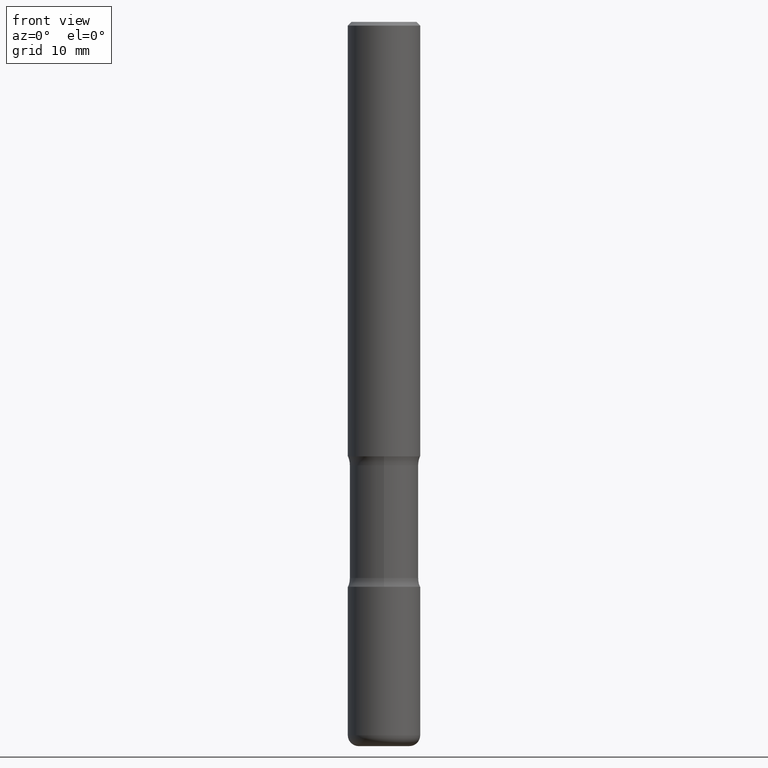
[diagram: clean part render]
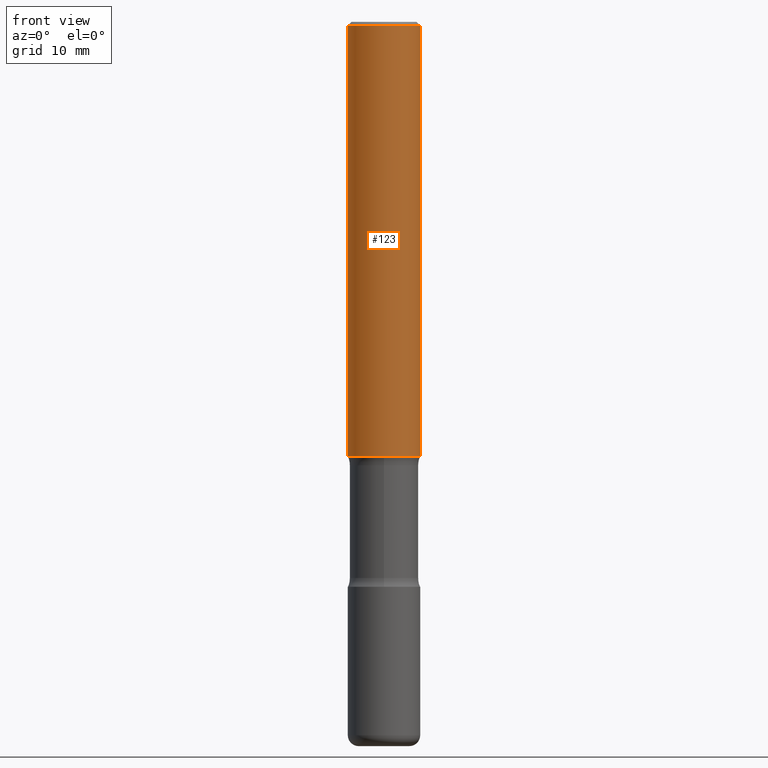
[diagram: same view with one face highlighted and labeled with its STEP entity id]
A machine part, front view. The second image highlights one B-rep face of the part: STEP entity #123.
In plain terms, the highlighted cylindrical surface (edge-blend (fillet) strip) has radius 5 mm, axis along (-0, 0, 1).
Its self-contained STEP definition (entity closure, byte-faithful):
#36 = CARTESIAN_POINT ( 'NONE',  ( 0.1968499999999999417, -1.420318657638188727E-15, -0.02000000000000006981 ) ) ;
#37 = CIRCLE ( 'NONE', #432, 0.1968499999999999417 ) ;
#40 = CARTESIAN_POINT ( 'NONE',  ( -0.1968499999999999417, 1.304766576325678113E-15, -0.02000000000000006981 ) ) ;
#45 = EDGE_CURVE ( 'NONE', #264, #304, #255, .T. ) ;
#56 = AXIS2_PLACEMENT_3D ( 'NONE', #398, #410, #316 ) ;
#61 = DIRECTION ( 'NONE',  ( 1.000000000000000000, -6.982962677686266711E-15, 4.876176775795935793E-29 ) ) ;
#83 = CARTESIAN_POINT ( 'NONE',  ( 0.1968500000000000527, -1.374596203102542003E-15, 9.598753983154302260E-30 ) ) ;
#95 = ORIENTED_EDGE ( 'NONE', *, *, #530, .F. ) ;
#97 = CARTESIAN_POINT ( 'NONE',  ( 0.000000000000000000, 0.000000000000000000, 0.000000000000000000 ) ) ;
#100 = FACE_OUTER_BOUND ( 'NONE', #128, .T. ) ;
#117 = CARTESIAN_POINT ( 'NONE',  ( -0.1968500000000001360, -2.760000047352310125E-15, -2.362200000000000077 ) ) ;
#123 = ADVANCED_FACE ( 'NONE', ( #100 ), #174, .T. ) ;
#126 = VECTOR ( 'NONE', #369, 39.37007874015748143 ) ;
#128 = EDGE_LOOP ( 'NONE', ( #268, #519, #385, #95 ) ) ;
#174 = CYLINDRICAL_SURFACE ( 'NONE', #270, 0.1968500000000000527 ) ;
#192 = VECTOR ( 'NONE', #252, 39.37007874015748143 ) ;
#252 = DIRECTION ( 'NONE',  ( -2.445468806185136877E-29, 3.491481338843145188E-15, 1.000000000000000000 ) ) ;
#255 = CIRCLE ( 'NONE', #56, 0.1968500000000001082 ) ;
#258 = CARTESIAN_POINT ( 'NONE',  ( 4.890937612370289799E-31, -6.982962677686315028E-17, -0.02000000000000006981 ) ) ;
#264 = VERTEX_POINT ( 'NONE', #117 ) ;
#268 = ORIENTED_EDGE ( 'NONE', *, *, #315, .F. ) ;
#270 = AXIS2_PLACEMENT_3D ( 'NONE', #97, #276, #61 ) ;
#276 = DIRECTION ( 'NONE',  ( -2.445468806185136597E-29, 3.491481338843145583E-15, 1.000000000000000000 ) ) ;
#291 = LINE ( 'NONE', #457, #126 ) ;
#304 = VERTEX_POINT ( 'NONE', #496 ) ;
#314 = DIRECTION ( 'NONE',  ( -2.445468806185136597E-29, 3.491481338843145583E-15, 1.000000000000000000 ) ) ;
#315 = EDGE_CURVE ( 'NONE', #264, #395, #291, .T. ) ;
#316 = DIRECTION ( 'NONE',  ( 1.000000000000000000, -6.982962677686265133E-15, 0.000000000000000000 ) ) ;
#346 = VERTEX_POINT ( 'NONE', #36 ) ;
#369 = DIRECTION ( 'NONE',  ( -2.445468806185136877E-29, 3.491481338843145188E-15, 1.000000000000000000 ) ) ;
#385 = ORIENTED_EDGE ( 'NONE', *, *, #472, .T. ) ;
#395 = VERTEX_POINT ( 'NONE', #40 ) ;
#398 = CARTESIAN_POINT ( 'NONE',  ( 5.776686413970529753E-29, -8.247577218615279626E-15, -2.362200000000000077 ) ) ;
#404 = DIRECTION ( 'NONE',  ( 1.000000000000000000, -6.982962677686266711E-15, 0.000000000000000000 ) ) ;
#410 = DIRECTION ( 'NONE',  ( -2.445468806185136597E-29, 3.491481338843145583E-15, 1.000000000000000000 ) ) ;
#432 = AXIS2_PLACEMENT_3D ( 'NONE', #258, #314, #404 ) ;
#457 = CARTESIAN_POINT ( 'NONE',  ( -0.1968500000000000527, 1.398703375343757590E-15, -9.682923725166785079E-30 ) ) ;
#465 = LINE ( 'NONE', #83, #192 ) ;
#472 = EDGE_CURVE ( 'NONE', #304, #346, #465, .T. ) ;
#496 = CARTESIAN_POINT ( 'NONE',  ( 0.1968500000000001082, -9.622173421717821235E-15, -2.362200000000000077 ) ) ;
#519 = ORIENTED_EDGE ( 'NONE', *, *, #45, .T. ) ;
#530 = EDGE_CURVE ( 'NONE', #395, #346, #37, .T. ) ;